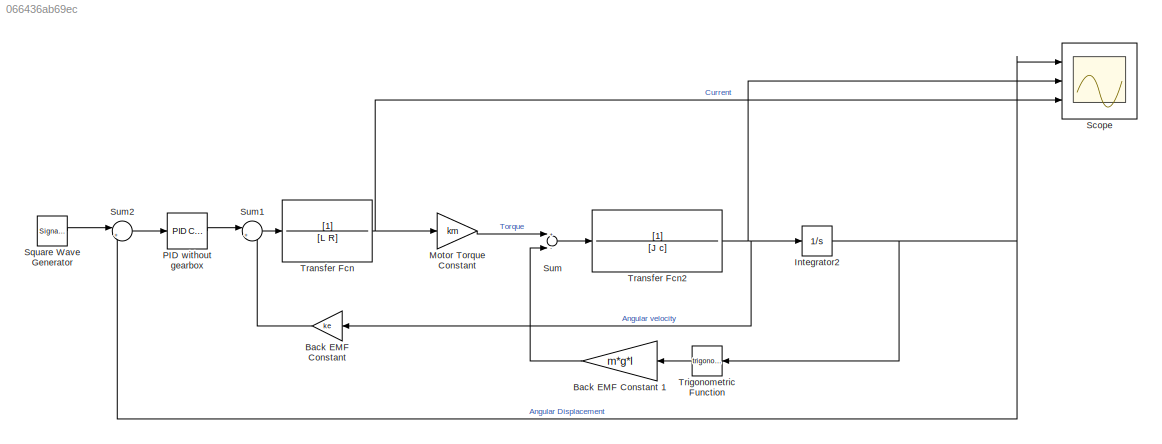
MODEL slx_066436ab69ec
KIND model
CONFIG AbsTol = auto
CONFIG EnableMultiTasking = off
CONFIG FixedStep = auto
CONFIG MaxStep = auto
CONFIG MinStep = auto
CONFIG RelTol = 1e-3
CONFIG SampleTimeConstraint = Unconstrained
CONFIG Solver = VariableStepAuto
CONFIG SolverName = VariableStepAuto
CONFIG StartTime = 0.0
CONFIG StopTime = 20
BLOCK [Gain] Back EMF Constant  
  Gain = ke
  OutDataTypeStr = Inherit: Inherit via internal rule
  ParamDataTypeStr = Inherit: Inherit via internal rule
  SaturateOnIntegerOverflow = off
BLOCK [Gain] Back EMF Constant  1
  Gain = m*g*l
  OutDataTypeStr = Inherit: Inherit via internal rule
  ParamDataTypeStr = Inherit: Inherit via internal rule
  SaturateOnIntegerOverflow = off
BLOCK [Integrator] Integrator2 
  InitialCondition = 0*pi/180
  Ports = [1, 1]
BLOCK [Gain] Motor Torque Constant
  Gain = km
  OutDataTypeStr = Inherit: Inherit via internal rule
  ParamDataTypeStr = Inherit: Inherit via internal rule
  SaturateOnIntegerOverflow = off
BLOCK [Reference] PID without gearbox  REF=simulink/Continuous/PID Controller
  Ports = [1, 1]
  SourceBlock = simulink/Continuous/PID Controller
  SourceProductBaseCode = SL
  SourceProductName = Simulink
  SourceType = PID 1dof
BLOCK [Scope] Scope 
  Floating = off
  NumInputPorts = 3
  Ports = [3]
  ScopeSpecificationString = Simulink.scopes.TimeScopeBlockCfg('CurrentConfiguration', extmgr.ConfigurationSet(extmgr.Configuration('Core','General UI',true),extmgr.Configuration('Core','Source UI',true),extmgr.Configuration('Sources','WiredSimulink',true),extmgr.Configuration('Visuals','Time Domain',true,'SerializedDisplays',{struct('MinYLimReal','-2','MaxYLimReal','2','YLabelReal','θ (rad)','MinYLimMag',' 0.00000','MaxYLimM...<+3250ch>
BLOCK [SignalGenerator] Square Wave Generator 
  Frequency = 0.1
  Ports = [0, 1]
  WaveForm = square
BLOCK [Sum] Sum
  InputSameDT = off
  Inputs = +-
  OutDataTypeStr = Inherit: Inherit via internal rule
  Ports = [2, 1]
  SaturateOnIntegerOverflow = off
BLOCK [Sum] Sum1
  IconShape = round
  InputSameDT = off
  Inputs = |+-
  OutDataTypeStr = Inherit: Inherit via internal rule
  Ports = [2, 1]
  SaturateOnIntegerOverflow = off
BLOCK [Sum] Sum2
  IconShape = round
  InputSameDT = off
  Inputs = |+-
  OutDataTypeStr = Inherit: Inherit via internal rule
  Ports = [2, 1]
  SaturateOnIntegerOverflow = off
BLOCK [TransferFcn] Transfer Fcn 
  Denominator = [L R]
BLOCK [TransferFcn] Transfer Fcn2 
  Denominator = [J c]
BLOCK [Trigonometry] Trigonometric Function
  Ports = [1, 1]
LINE Back EMF Constant  1:1 -> Sum:2
LINE Back EMF Constant  :1 -> Sum1:2
NET Integrator2 :1 -> Scope :1, Sum2:2, Trigonometric Function:1
LINE Motor Torque Constant:1 -> Sum:1
LINE PID without gearbox:1 -> Sum1:1
LINE Square Wave Generator :1 -> Sum2:1
LINE Sum1:1 -> Transfer Fcn :1
LINE Sum2:1 -> PID without gearbox:1
LINE Sum:1 -> Transfer Fcn2 :1
NET Transfer Fcn :1 -> Motor Torque Constant:1, Scope :3
NET Transfer Fcn2 :1 -> Back EMF Constant  :1, Integrator2 :1, Scope :2
LINE Trigonometric Function:1 -> Back EMF Constant  1:1
note: NET lines group one-source signal fan-out (src -> all destinations, sorted); 1:1 wires keep LINE
